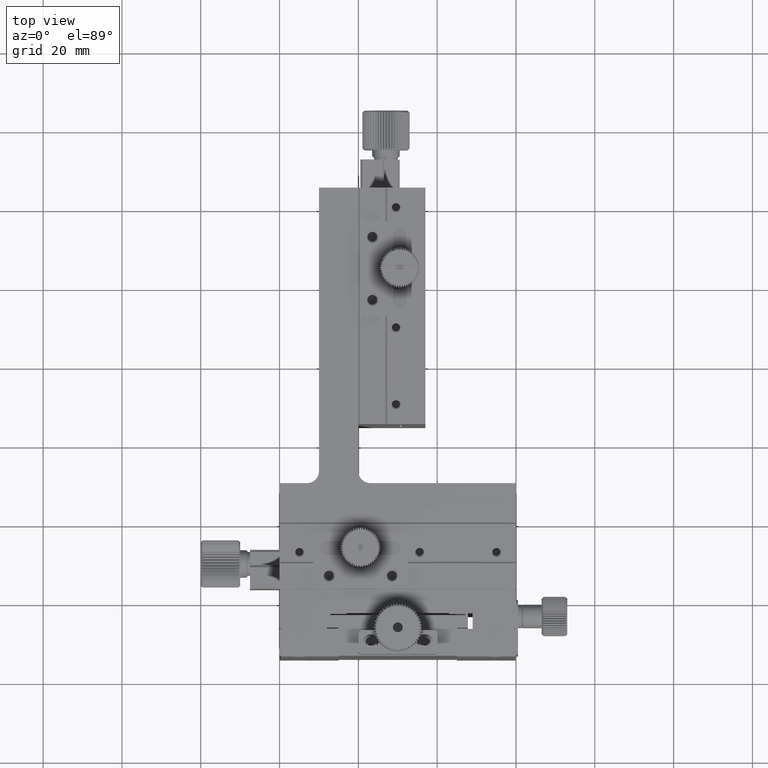
[diagram: clean part render]
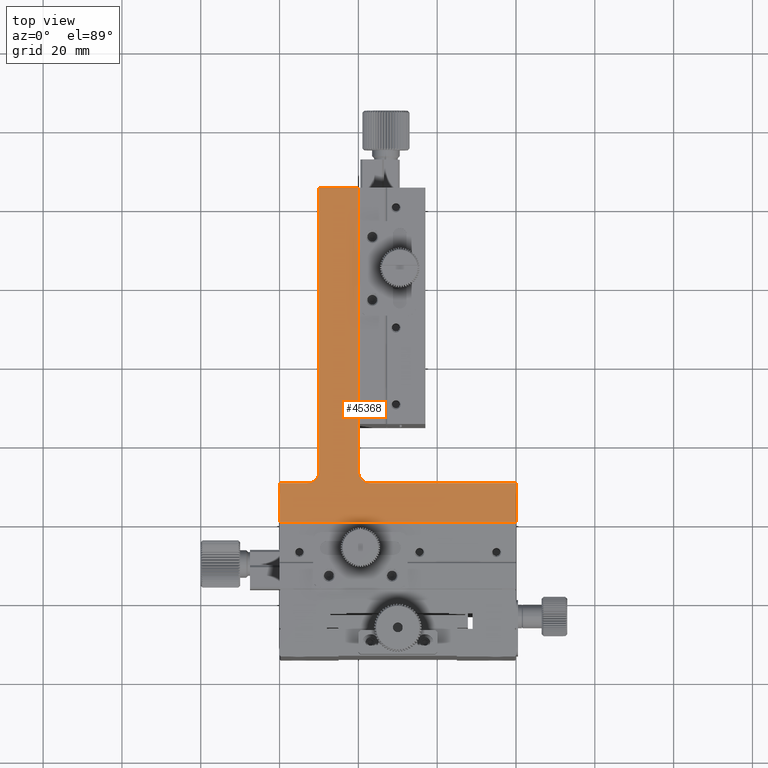
[diagram: same view with one face highlighted and labeled with its STEP entity id]
A machine part, top view. The second image highlights one B-rep face of the part: STEP entity #45368.
In plain terms, the highlighted planar face has unit normal (0, 0, 1).
Its self-contained STEP definition (entity closure, byte-faithful):
#6 = PLANE ( 'NONE',  #7116 ) ;
#547 = DIRECTION ( 'NONE',  ( -1.000000000000000000, -0.000000000000000000, 0.000000000000000000 ) ) ;
#1514 = CARTESIAN_POINT ( 'NONE',  ( 10.00000000000000000, 85.00000000000000000, 0.000000000000000000 ) ) ;
#3796 = DIRECTION ( 'NONE',  ( 0.000000000000000000, 0.000000000000000000, 1.000000000000000000 ) ) ;
#3932 = VERTEX_POINT ( 'NONE', #44493 ) ;
#5051 = VERTEX_POINT ( 'NONE', #58262 ) ;
#5123 = CARTESIAN_POINT ( 'NONE',  ( 0.000000000000000000, 13.00000000000000178, 0.000000000000000000 ) ) ;
#5153 = LINE ( 'NONE', #62172, #26423 ) ;
#5320 = LINE ( 'NONE', #48655, #5895 ) ;
#5895 = VECTOR ( 'NONE', #547, 1000.000000000000000 ) ;
#6418 = CIRCLE ( 'NONE', #35909, 2.999999999999999112 ) ;
#7116 = AXIS2_PLACEMENT_3D ( 'NONE', #19440, #3796, #24509 ) ;
#7504 = EDGE_CURVE ( 'NONE', #5051, #57182, #31514, .T. ) ;
#8439 = CARTESIAN_POINT ( 'NONE',  ( 20.00000000000000000, 85.00000000000000000, 0.000000000000000000 ) ) ;
#9067 = EDGE_LOOP ( 'NONE', ( #52946, #38575, #17471, #18453, #29891, #57642, #36699, #57020, #21284, #33338 ) ) ;
#12755 = CARTESIAN_POINT ( 'NONE',  ( 6.999999999999995559, 10.00000000000000000, 0.000000000000000000 ) ) ;
#15627 = CARTESIAN_POINT ( 'NONE',  ( 23.00000000000000000, 10.00000000000000178, 0.000000000000000000 ) ) ;
#16359 = VERTEX_POINT ( 'NONE', #15627 ) ;
#17471 = ORIENTED_EDGE ( 'NONE', *, *, #32600, .T. ) ;
#18453 = ORIENTED_EDGE ( 'NONE', *, *, #34946, .T. ) ;
#18566 = DIRECTION ( 'NONE',  ( -1.000000000000000000, -0.000000000000000000, 0.000000000000000000 ) ) ;
#18576 = EDGE_CURVE ( 'NONE', #23192, #35777, #51394, .T. ) ;
#18586 = DIRECTION ( 'NONE',  ( -0.000000000000000000, 1.000000000000000000, 0.000000000000000000 ) ) ;
#19440 = CARTESIAN_POINT ( 'NONE',  ( 23.00000000000000000, 13.00000000000000178, 0.000000000000000000 ) ) ;
#19779 = DIRECTION ( 'NONE',  ( 0.000000000000000000, -1.000000000000000000, -0.000000000000000000 ) ) ;
#20360 = VERTEX_POINT ( 'NONE', #45821 ) ;
#21284 = ORIENTED_EDGE ( 'NONE', *, *, #43275, .F. ) ;
#21783 = EDGE_CURVE ( 'NONE', #5051, #41986, #55599, .T. ) ;
#21784 = CARTESIAN_POINT ( 'NONE',  ( 20.00000000000000000, 85.00000000000000000, 0.000000000000000000 ) ) ;
#23192 = VERTEX_POINT ( 'NONE', #41203 ) ;
#23769 = VECTOR ( 'NONE', #56451, 1000.000000000000000 ) ;
#24509 = DIRECTION ( 'NONE',  ( 1.000000000000000000, 0.000000000000000000, -0.000000000000000000 ) ) ;
#24902 = CARTESIAN_POINT ( 'NONE',  ( 23.00000000000000000, 0.000000000000000000, 0.000000000000000000 ) ) ;
#25088 = CARTESIAN_POINT ( 'NONE',  ( 0.000000000000000000, 0.000000000000000000, 0.000000000000000000 ) ) ;
#26423 = VECTOR ( 'NONE', #18566, 1000.000000000000000 ) ;
#27474 = AXIS2_PLACEMENT_3D ( 'NONE', #28506, #43757, #47601 ) ;
#27819 = EDGE_CURVE ( 'NONE', #16359, #23192, #6418, .T. ) ;
#28506 = CARTESIAN_POINT ( 'NONE',  ( 6.999999999999990230, 13.00000000000000178, 0.000000000000000000 ) ) ;
#29891 = ORIENTED_EDGE ( 'NONE', *, *, #42044, .T. ) ;
#31514 = CIRCLE ( 'NONE', #27474, 3.000000000000011546 ) ;
#32600 = EDGE_CURVE ( 'NONE', #3932, #37862, #48769, .T. ) ;
#33338 = ORIENTED_EDGE ( 'NONE', *, *, #21783, .F. ) ;
#34222 = VECTOR ( 'NONE', #18586, 1000.000000000000000 ) ;
#34946 = EDGE_CURVE ( 'NONE', #37862, #20360, #59591, .T. ) ;
#35701 = EDGE_CURVE ( 'NONE', #57182, #3932, #5320, .T. ) ;
#35777 = VERTEX_POINT ( 'NONE', #21784 ) ;
#35909 = AXIS2_PLACEMENT_3D ( 'NONE', #51432, #36821, #41888 ) ;
#36419 = VECTOR ( 'NONE', #40375, 1000.000000000000000 ) ;
#36699 = ORIENTED_EDGE ( 'NONE', *, *, #27819, .T. ) ;
#36821 = DIRECTION ( 'NONE',  ( -0.000000000000000000, -0.000000000000000000, -1.000000000000000000 ) ) ;
#37862 = VERTEX_POINT ( 'NONE', #25088 ) ;
#38575 = ORIENTED_EDGE ( 'NONE', *, *, #35701, .T. ) ;
#40375 = DIRECTION ( 'NONE',  ( 0.000000000000000000, 1.000000000000000000, -0.000000000000000000 ) ) ;
#40615 = CARTESIAN_POINT ( 'NONE',  ( 20.00000000000000000, 13.00000000000000178, 0.000000000000000000 ) ) ;
#41203 = CARTESIAN_POINT ( 'NONE',  ( 20.00000000000000000, 13.00000000000000178, 0.000000000000000000 ) ) ;
#41408 = VECTOR ( 'NONE', #59923, 1000.000000000000000 ) ;
#41809 = CARTESIAN_POINT ( 'NONE',  ( 60.00000000000000000, 13.00000000000000178, 0.000000000000000000 ) ) ;
#41888 = DIRECTION ( 'NONE',  ( 1.000000000000000000, 0.000000000000000000, 0.000000000000000000 ) ) ;
#41986 = VERTEX_POINT ( 'NONE', #46921 ) ;
#42044 = EDGE_CURVE ( 'NONE', #20360, #53195, #52599, .T. ) ;
#43275 = EDGE_CURVE ( 'NONE', #41986, #35777, #52068, .T. ) ;
#43757 = DIRECTION ( 'NONE',  ( -0.000000000000000000, -0.000000000000000000, -1.000000000000000000 ) ) ;
#44493 = CARTESIAN_POINT ( 'NONE',  ( 0.000000000000000000, 10.00000000000000000, 0.000000000000000000 ) ) ;
#45010 = EDGE_CURVE ( 'NONE', #53195, #16359, #5153, .T. ) ;
#45368 = ADVANCED_FACE ( 'NONE', ( #47449 ), #6, .T. ) ;
#45821 = CARTESIAN_POINT ( 'NONE',  ( 60.00000000000000000, 0.000000000000000000, 0.000000000000000000 ) ) ;
#46921 = CARTESIAN_POINT ( 'NONE',  ( 10.00000000000000000, 85.00000000000000000, 0.000000000000000000 ) ) ;
#47449 = FACE_OUTER_BOUND ( 'NONE', #9067, .T. ) ;
#47601 = DIRECTION ( 'NONE',  ( 1.000000000000000000, -1.156482317317866992E-15, 0.000000000000000000 ) ) ;
#48655 = CARTESIAN_POINT ( 'NONE',  ( 23.00000000000000000, 10.00000000000000000, 0.000000000000000000 ) ) ;
#48769 = LINE ( 'NONE', #5123, #61841 ) ;
#51394 = LINE ( 'NONE', #40615, #23769 ) ;
#51432 = CARTESIAN_POINT ( 'NONE',  ( 23.00000000000000000, 13.00000000000000178, 0.000000000000000000 ) ) ;
#52068 = LINE ( 'NONE', #8439, #54710 ) ;
#52599 = LINE ( 'NONE', #41809, #34222 ) ;
#52946 = ORIENTED_EDGE ( 'NONE', *, *, #7504, .T. ) ;
#53195 = VERTEX_POINT ( 'NONE', #61367 ) ;
#54710 = VECTOR ( 'NONE', #55570, 1000.000000000000000 ) ;
#55570 = DIRECTION ( 'NONE',  ( 1.000000000000000000, 0.000000000000000000, -0.000000000000000000 ) ) ;
#55599 = LINE ( 'NONE', #1514, #36419 ) ;
#56451 = DIRECTION ( 'NONE',  ( -0.000000000000000000, 1.000000000000000000, 0.000000000000000000 ) ) ;
#57020 = ORIENTED_EDGE ( 'NONE', *, *, #18576, .T. ) ;
#57182 = VERTEX_POINT ( 'NONE', #12755 ) ;
#57642 = ORIENTED_EDGE ( 'NONE', *, *, #45010, .T. ) ;
#58262 = CARTESIAN_POINT ( 'NONE',  ( 10.00000000000000000, 13.00000000000000000, 0.000000000000000000 ) ) ;
#59591 = LINE ( 'NONE', #24902, #41408 ) ;
#59923 = DIRECTION ( 'NONE',  ( 1.000000000000000000, 0.000000000000000000, -0.000000000000000000 ) ) ;
#61367 = CARTESIAN_POINT ( 'NONE',  ( 60.00000000000000000, 10.00000000000000000, 0.000000000000000000 ) ) ;
#61841 = VECTOR ( 'NONE', #19779, 1000.000000000000000 ) ;
#62172 = CARTESIAN_POINT ( 'NONE',  ( 23.00000000000000000, 10.00000000000000000, 0.000000000000000000 ) ) ;